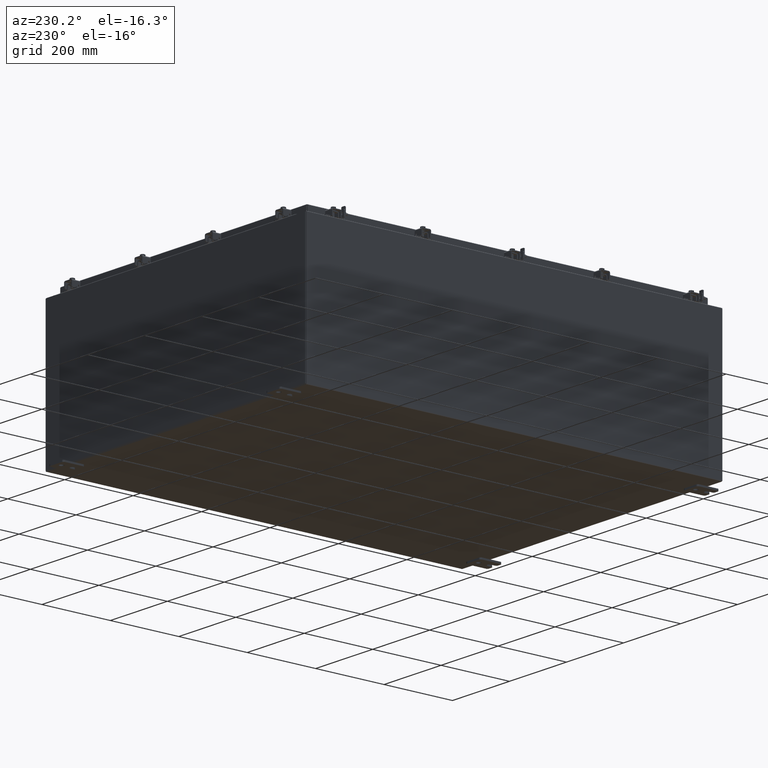
[diagram: clean part render]
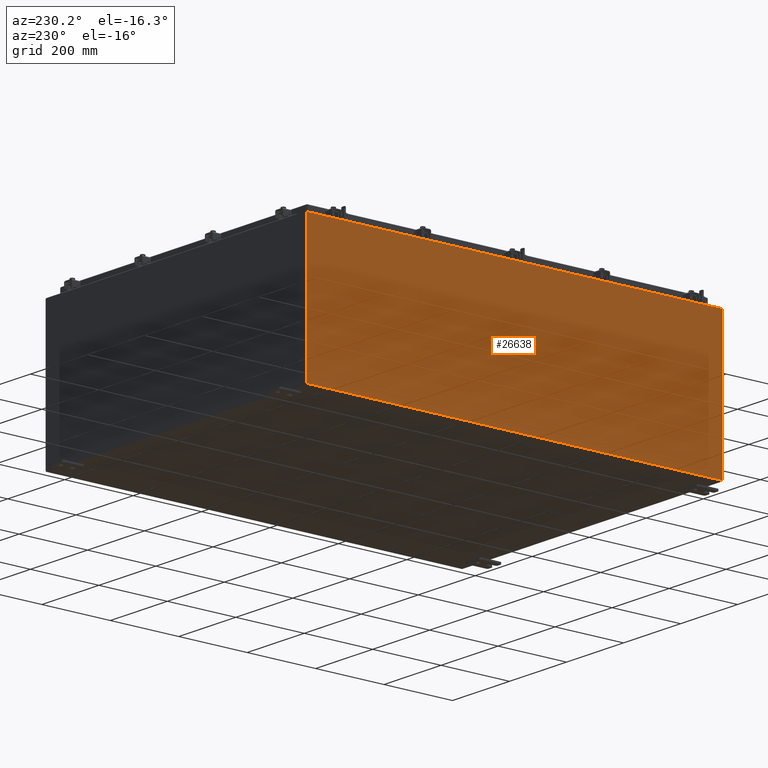
[diagram: same view with one face highlighted and labeled with its STEP entity id]
A machine part, auxiliary view. The second image highlights one B-rep face of the part: STEP entity #26638.
In plain terms, the highlighted planar face has unit normal (1, 0, 0).
Its self-contained STEP definition (entity closure, byte-faithful):
#2410 = CARTESIAN_POINT ( 'NONE',  ( -18.00000000000000400, -23.92529999999998600, 0.01300000000000010700 ) ) ;
#2553 = EDGE_CURVE ( 'NONE', #12854, #25799, #25011, .T. ) ;
#2665 = FACE_OUTER_BOUND ( 'NONE', #8821, .T. ) ;
#3697 = CARTESIAN_POINT ( 'NONE',  ( -18.00000000000000400, 23.92529999999998900, 0.01300000000000010700 ) ) ;
#5339 = CARTESIAN_POINT ( 'NONE',  ( -18.00000000000006000, -23.92529999999998900, 15.83759999999998200 ) ) ;
#5653 = DIRECTION ( 'NONE',  ( 3.430827668758847900E-015, 0.0000000000000000000, -1.000000000000000000 ) ) ;
#7136 = EDGE_CURVE ( 'NONE', #18309, #22026, #10383, .T. ) ;
#7323 = ORIENTED_EDGE ( 'NONE', *, *, #2553, .T. ) ;
#7696 = ORIENTED_EDGE ( 'NONE', *, *, #9084, .T. ) ;
#8601 = EDGE_CURVE ( 'NONE', #12854, #22026, #9298, .T. ) ;
#8802 = DIRECTION ( 'NONE',  ( -3.430827668758847900E-015, 0.0000000000000000000, 1.000000000000000000 ) ) ;
#8821 = EDGE_LOOP ( 'NONE', ( #7696, #26438, #16255, #7323 ) ) ;
#9084 = EDGE_CURVE ( 'NONE', #25799, #18309, #21812, .T. ) ;
#9165 = CARTESIAN_POINT ( 'NONE',  ( -18.00000000000000400, 23.92529999999998900, 0.01300000000000010700 ) ) ;
#9298 = LINE ( 'NONE', #3697, #20537 ) ;
#9692 = VECTOR ( 'NONE', #16139, 39.37007874015748100 ) ;
#9943 = VECTOR ( 'NONE', #15938, 39.37007874015748100 ) ;
#10383 = LINE ( 'NONE', #13999, #9692 ) ;
#11683 = CARTESIAN_POINT ( 'NONE',  ( -18.00000000000006000, -23.92529999999998600, 15.83759999999998200 ) ) ;
#12854 = VERTEX_POINT ( 'NONE', #2410 ) ;
#13040 = CARTESIAN_POINT ( 'NONE',  ( -18.00000000000000400, -23.92529999999999600, -6.228613425554519900E-014 ) ) ;
#13999 = CARTESIAN_POINT ( 'NONE',  ( -18.00000000000000400, 23.92529999999998900, -6.228613425554519900E-014 ) ) ;
#15938 = DIRECTION ( 'NONE',  ( 0.0000000000000000000, 1.000000000000000000, 0.0000000000000000000 ) ) ;
#16139 = DIRECTION ( 'NONE',  ( 3.430827668758847900E-015, 0.0000000000000000000, -1.000000000000000000 ) ) ;
#16255 = ORIENTED_EDGE ( 'NONE', *, *, #8601, .F. ) ;
#18299 = DIRECTION ( 'NONE',  ( 1.000000000000000000, 0.0000000000000000000, 3.430827668758847900E-015 ) ) ;
#18309 = VERTEX_POINT ( 'NONE', #18376 ) ;
#18376 = CARTESIAN_POINT ( 'NONE',  ( -18.00000000000006000, 23.92529999999998900, 15.83759999999999500 ) ) ;
#20500 = AXIS2_PLACEMENT_3D ( 'NONE', #22429, #18299, #5653 ) ;
#20537 = VECTOR ( 'NONE', #26707, 39.37007874015748100 ) ;
#21812 = LINE ( 'NONE', #5339, #9943 ) ;
#22026 = VERTEX_POINT ( 'NONE', #9165 ) ;
#22429 = CARTESIAN_POINT ( 'NONE',  ( -18.00000000000000400, 0.0000000000000000000, -6.228613425554519900E-014 ) ) ;
#24340 = VECTOR ( 'NONE', #8802, 39.37007874015748100 ) ;
#25011 = LINE ( 'NONE', #13040, #24340 ) ;
#25799 = VERTEX_POINT ( 'NONE', #11683 ) ;
#26438 = ORIENTED_EDGE ( 'NONE', *, *, #7136, .T. ) ;
#26638 = ADVANCED_FACE ( 'NONE', ( #2665 ), #26644, .F. ) ;
#26644 = PLANE ( 'NONE',  #20500 ) ;
#26707 = DIRECTION ( 'NONE',  ( -0.0000000000000000000, 1.000000000000000000, -0.0000000000000000000 ) ) ;